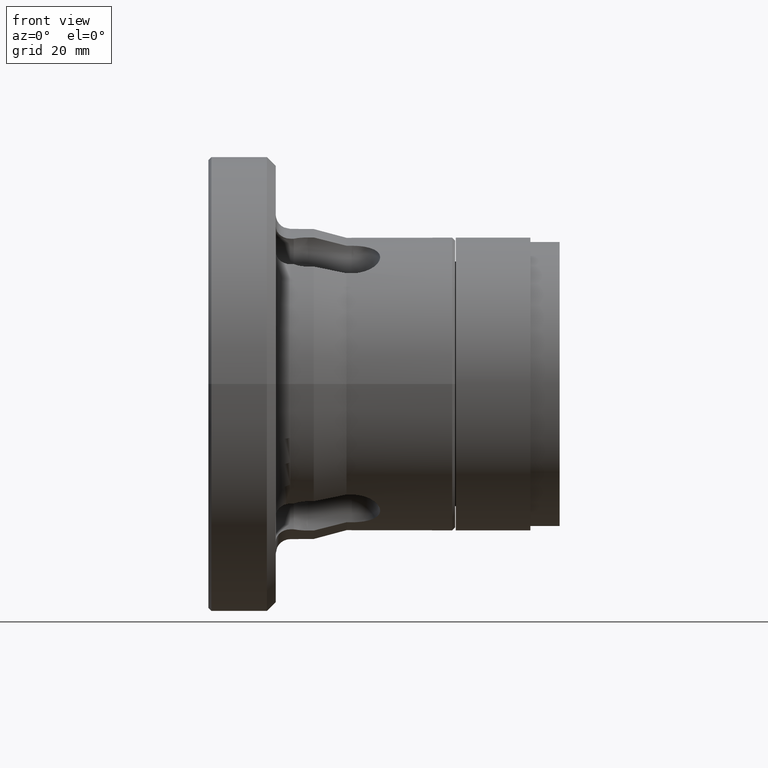
[diagram: clean part render]
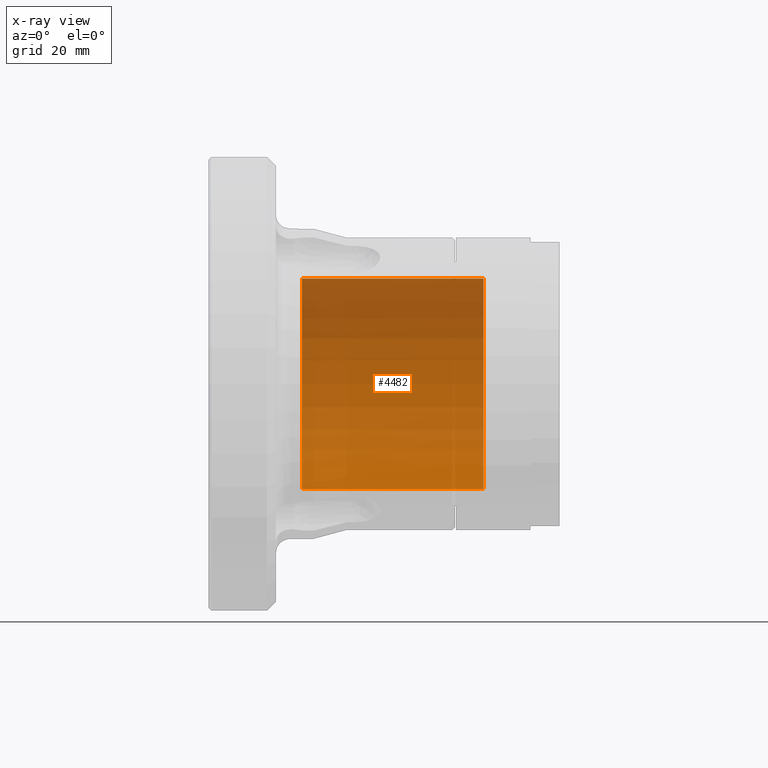
[diagram: x-ray — body ghosted, one internal face saturated and labeled with its STEP entity id]
A machine part, front view, then the same camera in x-ray: the body is ghosted and one INTERNAL B-rep face — a face not visible from any outside direction — is saturated and labeled: STEP entity #4482.
In plain terms, the highlighted cylindrical surface (partial cylindrical patch) has radius 36 mm, axis along (-1, -0, -0).
Its self-contained STEP definition (entity closure, byte-faithful):
#25 = VERTEX_POINT ( 'NONE', #3015 ) ;
#52 = VERTEX_POINT ( 'NONE', #3038 ) ;
#144 = VERTEX_POINT ( 'NONE', #3073 ) ;
#292 = VERTEX_POINT ( 'NONE', #3125 ) ;
#1299 = DIRECTION ( 'NONE',  ( -1.000000000000000000, -0.0000000000000000000, -0.0000000000000000000 ) ) ;
#1309 = FACE_OUTER_BOUND ( 'NONE', #5312, .T. ) ;
#1310 = CARTESIAN_POINT ( 'NONE',  ( 0.0000000000000000000, 0.0000000000000000000, 0.0000000000000000000 ) ) ;
#1312 = CYLINDRICAL_SURFACE ( 'NONE', #3971, 0.03599999999999999700 ) ;
#1313 = DIRECTION ( 'NONE',  ( 0.0000000000000000000, 0.0000000000000000000, 1.000000000000000000 ) ) ;
#1747 = CARTESIAN_POINT ( 'NONE',  ( 0.0000000000000000000, 4.408728476930471000E-018, -0.03599999999999999700 ) ) ;
#1751 = LINE ( 'NONE', #1747, #3766 ) ;
#1755 = DIRECTION ( 'NONE',  ( -1.000000000000000000, -0.0000000000000000000, -0.0000000000000000000 ) ) ;
#1765 = CARTESIAN_POINT ( 'NONE',  ( 0.008000000000000000200, 0.0000000000000000000, 0.0000000000000000000 ) ) ;
#1766 = DIRECTION ( 'NONE',  ( -1.000000000000000000, -0.0000000000000000000, -0.0000000000000000000 ) ) ;
#1767 = DIRECTION ( 'NONE',  ( 0.0000000000000000000, 0.0000000000000000000, 1.000000000000000000 ) ) ;
#2947 = ORIENTED_EDGE ( 'NONE', *, *, #4696, .T. ) ;
#2948 = ORIENTED_EDGE ( 'NONE', *, *, #4603, .T. ) ;
#2949 = ORIENTED_EDGE ( 'NONE', *, *, #4606, .F. ) ;
#2950 = ORIENTED_EDGE ( 'NONE', *, *, #4710, .F. ) ;
#3015 = CARTESIAN_POINT ( 'NONE',  ( 0.008000000000000000200, 4.408728476930471000E-018, -0.03599999999999999700 ) ) ;
#3038 = CARTESIAN_POINT ( 'NONE',  ( 0.07000000000000000700, 4.408728476930471000E-018, -0.03599999999999999700 ) ) ;
#3073 = CARTESIAN_POINT ( 'NONE',  ( 0.07000000000000000700, 0.0000000000000000000, 0.03599999999999999700 ) ) ;
#3125 = CARTESIAN_POINT ( 'NONE',  ( 0.008000000000000000200, 0.0000000000000000000, 0.03599999999999999700 ) ) ;
#3766 = VECTOR ( 'NONE', #1755, 1.000000000000000000 ) ;
#3971 = AXIS2_PLACEMENT_3D ( 'NONE', #1310, #1299, #1313 ) ;
#4104 = AXIS2_PLACEMENT_3D ( 'NONE', #1765, #1766, #1767 ) ;
#4152 = CIRCLE ( 'NONE', #4104, 0.03599999999999999700 ) ;
#4482 = ADVANCED_FACE ( 'NONE', ( #1309 ), #1312, .T. ) ;
#4603 = EDGE_CURVE ( 'NONE', #52, #25, #1751, .T. ) ;
#4606 = EDGE_CURVE ( 'NONE', #292, #25, #4152, .T. ) ;
#4696 = EDGE_CURVE ( 'NONE', #144, #52, #5555, .T. ) ;
#4710 = EDGE_CURVE ( 'NONE', #144, #292, #5752, .T. ) ;
#5312 = EDGE_LOOP ( 'NONE', ( #2947, #2948, #2949, #2950 ) ) ;
#5536 = VECTOR ( 'NONE', #5754, 1.000000000000000000 ) ;
#5553 = AXIS2_PLACEMENT_3D ( 'NONE', #5714, #5715, #5716 ) ;
#5555 = CIRCLE ( 'NONE', #5553, 0.03599999999999999700 ) ;
#5714 = CARTESIAN_POINT ( 'NONE',  ( 0.07000000000000000700, 0.0000000000000000000, 0.0000000000000000000 ) ) ;
#5715 = DIRECTION ( 'NONE',  ( -1.000000000000000000, -0.0000000000000000000, -0.0000000000000000000 ) ) ;
#5716 = DIRECTION ( 'NONE',  ( 0.0000000000000000000, 0.0000000000000000000, 1.000000000000000000 ) ) ;
#5752 = LINE ( 'NONE', #5753, #5536 ) ;
#5753 = CARTESIAN_POINT ( 'NONE',  ( 0.0000000000000000000, 0.0000000000000000000, 0.03599999999999999700 ) ) ;
#5754 = DIRECTION ( 'NONE',  ( -1.000000000000000000, -0.0000000000000000000, -0.0000000000000000000 ) ) ;